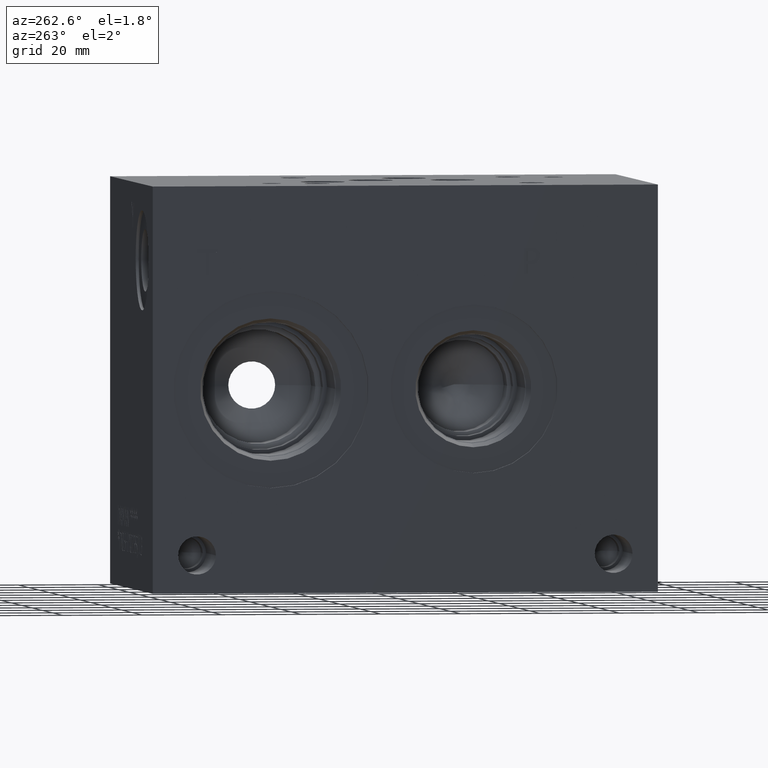
[diagram: clean part render]
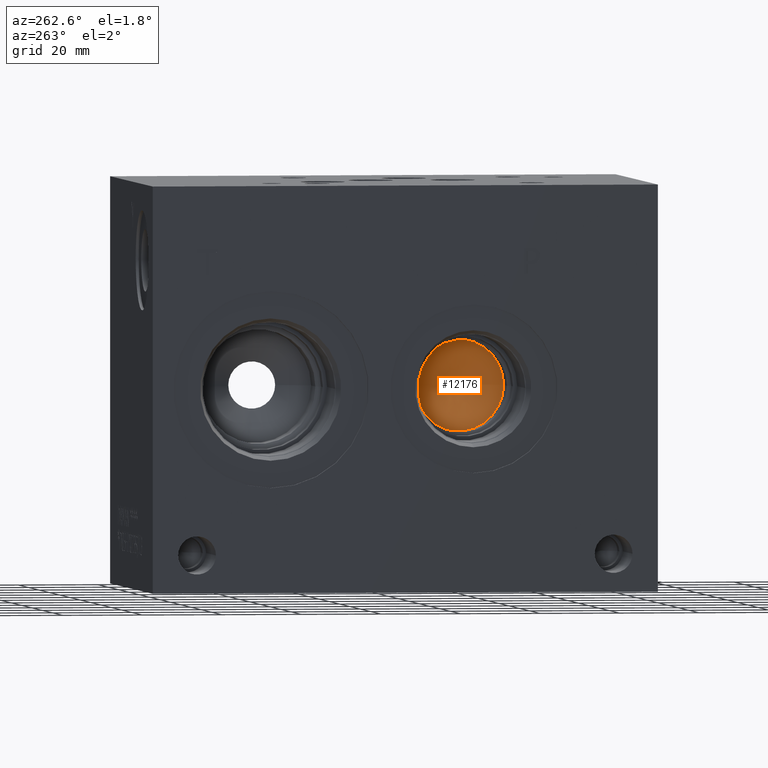
[diagram: same view with one face highlighted and labeled with its STEP entity id]
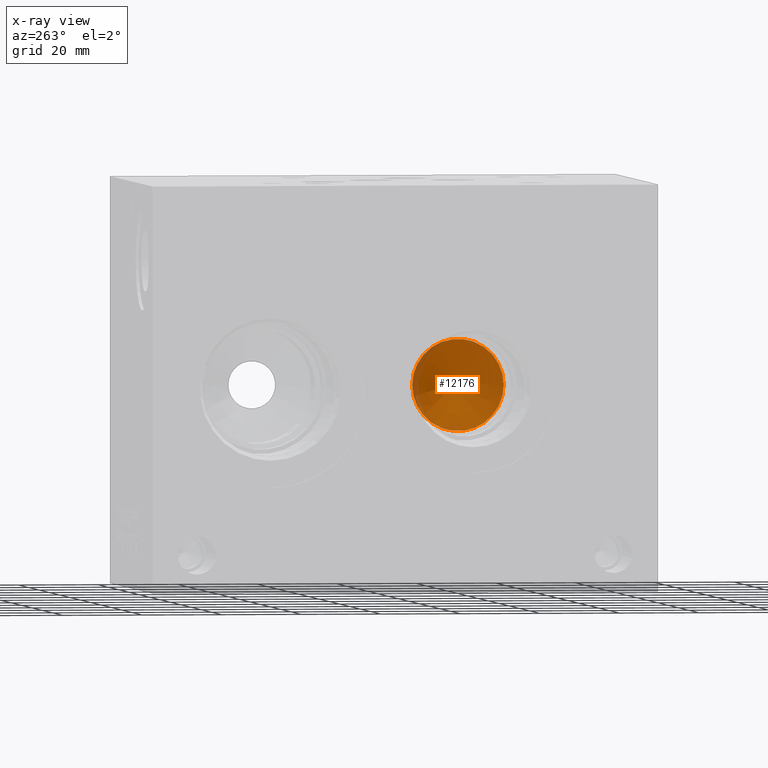
[diagram: x-ray of the same camera — body ghosted, the highlighted face saturated]
A machine part, auxiliary view. The second image highlights one B-rep face of the part: STEP entity #12176.
The next image is the same camera in x-ray: the body ghosted, the highlighted face saturated — about 6% of this face is hidden behind the body in this view.
In plain terms, the highlighted conical surface has half-angle 60 deg.
Its self-contained STEP definition (entity closure, byte-faithful):
#97=CONICAL_SURFACE('',#12768,5.7531,1.0471975511966);
#232=CIRCLE('',#12769,11.5062);
#233=CIRCLE('',#12770,11.5062);
#1464=FACE_OUTER_BOUND('',#2156,.T.);
#2156=EDGE_LOOP('',(#10355,#10356,#10357,#10358));
#3344=LINE('',#20646,#4488);
#4488=VECTOR('',#15053,5.7531);
#5563=VERTEX_POINT('',#20642);
#5564=VERTEX_POINT('',#20643);
#5565=VERTEX_POINT('',#20645);
#7209=EDGE_CURVE('',#5563,#5564,#232,.T.);
#7210=EDGE_CURVE('',#5564,#5565,#3344,.T.);
#7211=EDGE_CURVE('',#5564,#5563,#233,.T.);
#10355=ORIENTED_EDGE('',*,*,#7209,.T.);
#10356=ORIENTED_EDGE('',*,*,#7210,.T.);
#10357=ORIENTED_EDGE('',*,*,#7210,.F.);
#10358=ORIENTED_EDGE('',*,*,#7211,.T.);
#12176=ADVANCED_FACE('',(#1464),#97,.F.);
#12768=AXIS2_PLACEMENT_3D('',#20641,#15049,#15050);
#12769=AXIS2_PLACEMENT_3D('',#20644,#15051,#15052);
#12770=AXIS2_PLACEMENT_3D('',#20647,#15054,#15055);
#15049=DIRECTION('center_axis',(-1.,0.,0.));
#15050=DIRECTION('ref_axis',(0.,1.,0.));
#15051=DIRECTION('center_axis',(-1.,0.,0.));
#15052=DIRECTION('ref_axis',(0.,1.,0.));
#15053=DIRECTION('',(0.5,0.866025403784439,-1.06057523872491E-16));
#15054=DIRECTION('center_axis',(-1.,0.,0.));
#15055=DIRECTION('ref_axis',(0.,1.,0.));
#20641=CARTESIAN_POINT('Origin',(34.1885438336748,46.2788,50.8));
#20642=CARTESIAN_POINT('',(30.86699,57.785,50.8));
#20643=CARTESIAN_POINT('',(30.86699,34.7726,50.8));
#20644=CARTESIAN_POINT('Origin',(30.86699,46.2788,50.8));
#20645=CARTESIAN_POINT('',(37.5100976673497,46.2788,50.8));
#20646=CARTESIAN_POINT('',(34.1885438336748,40.5257,50.8));
#20647=CARTESIAN_POINT('Origin',(30.86699,46.2788,50.8));